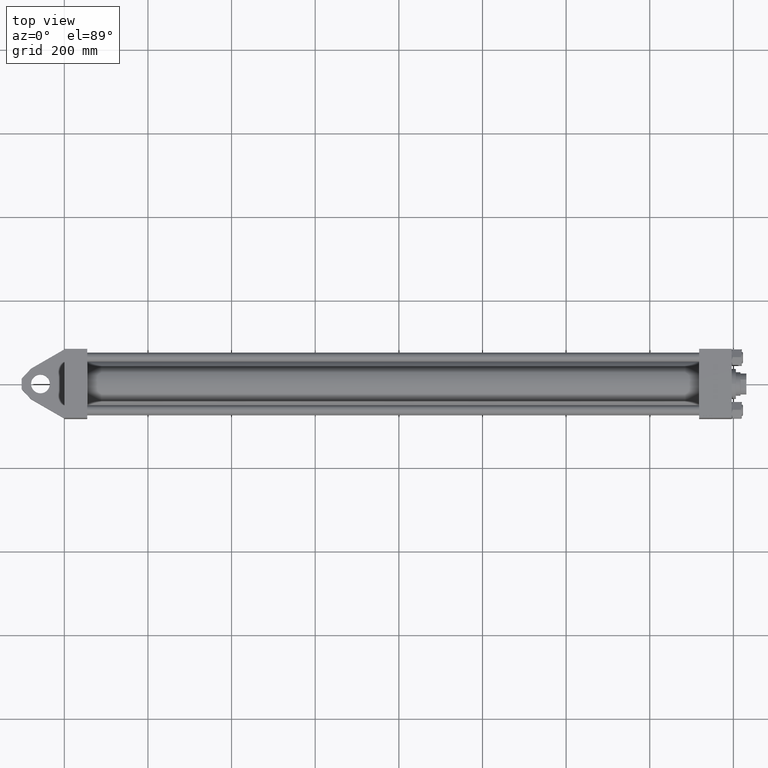
[diagram: clean part render]
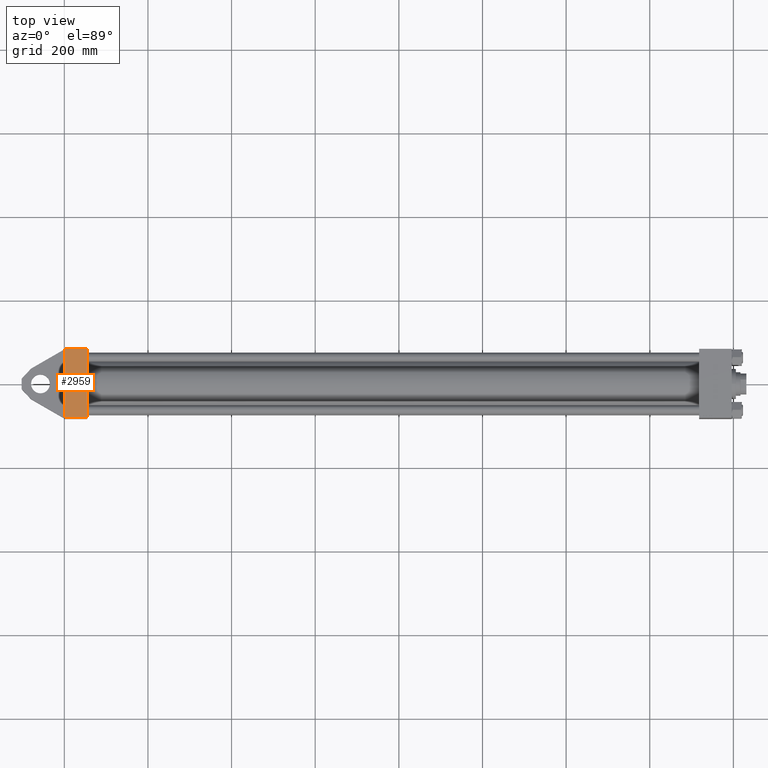
[diagram: same view with one face highlighted and labeled with its STEP entity id]
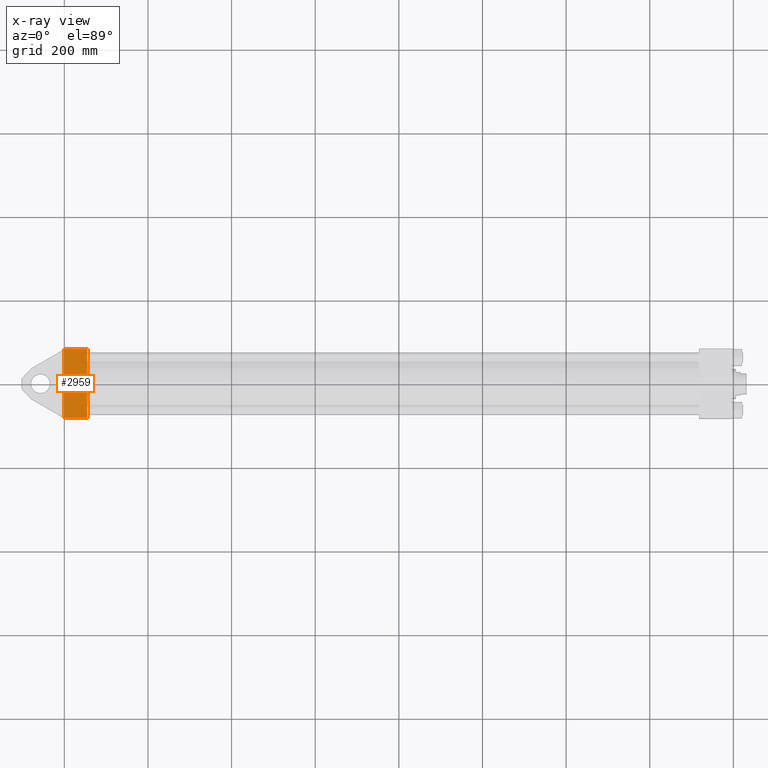
[diagram: x-ray of the same camera — body ghosted, the highlighted face saturated]
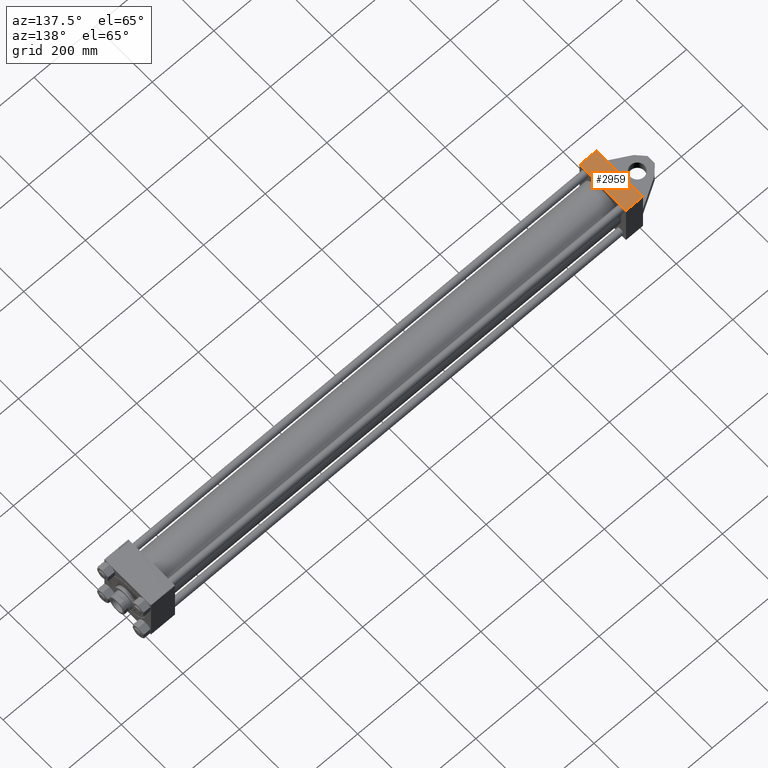
[diagram: same view with one face highlighted and labeled with its STEP entity id]
A machine part, top view. The second image highlights one B-rep face of the part: STEP entity #2959.
The next image is the same camera in x-ray: the body ghosted, the highlighted face saturated — about 0% of this face is hidden behind the body in this view.
A second angle (auxiliary view) of the same face is appended — the face is thin or edge-on in the first view.
In plain terms, the highlighted planar face has unit normal (-0, 0, 1).
Its self-contained STEP definition (entity closure, byte-faithful):
#415 = LINE ( 'NONE', #19239, #14693 ) ;
#958 = VERTEX_POINT ( 'NONE', #27018 ) ;
#1364 = DIRECTION ( 'NONE',  ( 0.000000000000000000, 0.000000000000000000, -1.000000000000000000 ) ) ;
#2959 = ADVANCED_FACE ( 'NONE', ( #37850 ), #44898, .T. ) ;
#9108 = EDGE_CURVE ( 'NONE', #958, #14342, #41184, .T. ) ;
#9326 = DIRECTION ( 'NONE',  ( -0.000000000000000000, 1.000000000000000000, 0.000000000000000000 ) ) ;
#9597 = CARTESIAN_POINT ( 'NONE',  ( 55.00000000000000000, 82.50000000000002842, 82.50000000000002842 ) ) ;
#10505 = AXIS2_PLACEMENT_3D ( 'NONE', #12617, #9326, #20603 ) ;
#11238 = DIRECTION ( 'NONE',  ( -1.000000000000000000, 0.000000000000000000, 0.000000000000000000 ) ) ;
#12599 = ORIENTED_EDGE ( 'NONE', *, *, #18969, .T. ) ;
#12617 = CARTESIAN_POINT ( 'NONE',  ( 55.00000000000000000, 82.50000000000002842, 82.50000000000002842 ) ) ;
#14342 = VERTEX_POINT ( 'NONE', #34827 ) ;
#14693 = VECTOR ( 'NONE', #11238, 1000.000000000000000 ) ;
#18969 = EDGE_CURVE ( 'NONE', #21357, #958, #27553, .T. ) ;
#19239 = CARTESIAN_POINT ( 'NONE',  ( 55.00000000000000000, 82.50000000000002842, -82.00000000000000000 ) ) ;
#19782 = VERTEX_POINT ( 'NONE', #24006 ) ;
#20603 = DIRECTION ( 'NONE',  ( 0.000000000000000000, -0.000000000000000000, 1.000000000000000000 ) ) ;
#20769 = EDGE_CURVE ( 'NONE', #14342, #19782, #415, .T. ) ;
#20908 = CARTESIAN_POINT ( 'NONE',  ( 55.00000000000000000, 82.50000000000002842, 82.00000000000005684 ) ) ;
#21357 = VERTEX_POINT ( 'NONE', #35585 ) ;
#21363 = EDGE_LOOP ( 'NONE', ( #35064, #30531, #27987, #12599 ) ) ;
#24006 = CARTESIAN_POINT ( 'NONE',  ( 0.000000000000000000, 82.50000000000002842, -82.00000000000000000 ) ) ;
#27018 = CARTESIAN_POINT ( 'NONE',  ( 55.00000000000000000, 82.50000000000002842, 82.00000000000005684 ) ) ;
#27553 = LINE ( 'NONE', #20908, #43980 ) ;
#27987 = ORIENTED_EDGE ( 'NONE', *, *, #33091, .F. ) ;
#30531 = ORIENTED_EDGE ( 'NONE', *, *, #20769, .T. ) ;
#31404 = LINE ( 'NONE', #39143, #31699 ) ;
#31699 = VECTOR ( 'NONE', #45750, 1000.000000000000000 ) ;
#33091 = EDGE_CURVE ( 'NONE', #21357, #19782, #31404, .T. ) ;
#34827 = CARTESIAN_POINT ( 'NONE',  ( 55.00000000000000000, 82.50000000000002842, -82.00000000000000000 ) ) ;
#35064 = ORIENTED_EDGE ( 'NONE', *, *, #9108, .T. ) ;
#35585 = CARTESIAN_POINT ( 'NONE',  ( 0.000000000000000000, 82.50000000000002842, 82.00000000000005684 ) ) ;
#37815 = VECTOR ( 'NONE', #1364, 1000.000000000000000 ) ;
#37850 = FACE_OUTER_BOUND ( 'NONE', #21363, .T. ) ;
#39143 = CARTESIAN_POINT ( 'NONE',  ( 0.000000000000000000, 82.50000000000002842, 82.50000000000002842 ) ) ;
#41184 = LINE ( 'NONE', #9597, #37815 ) ;
#43980 = VECTOR ( 'NONE', #45456, 1000.000000000000000 ) ;
#44898 = PLANE ( 'NONE',  #10505 ) ;
#45456 = DIRECTION ( 'NONE',  ( 1.000000000000000000, 0.000000000000000000, 0.000000000000000000 ) ) ;
#45750 = DIRECTION ( 'NONE',  ( 0.000000000000000000, 0.000000000000000000, -1.000000000000000000 ) ) ;